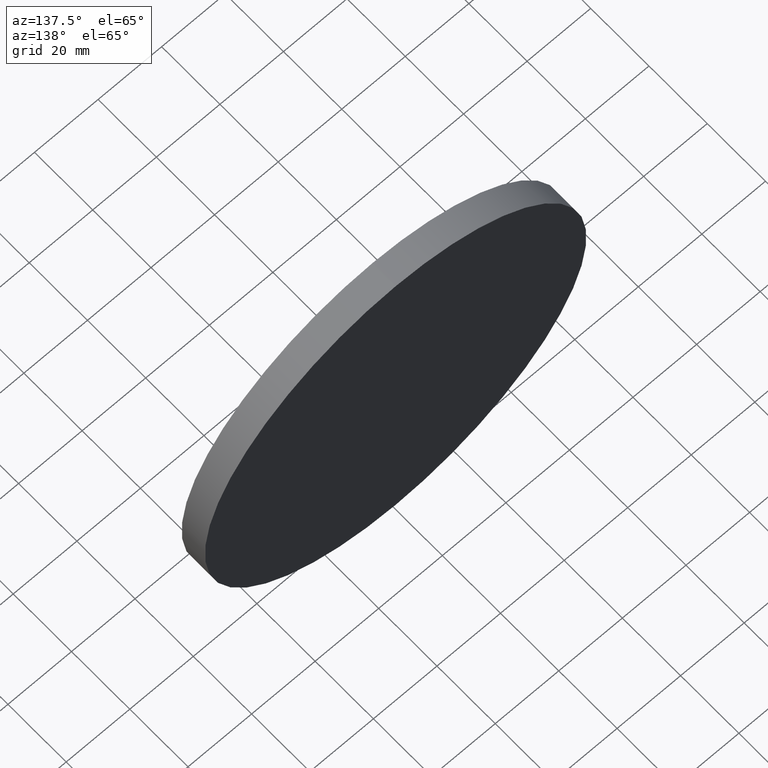
[diagram: clean part render]
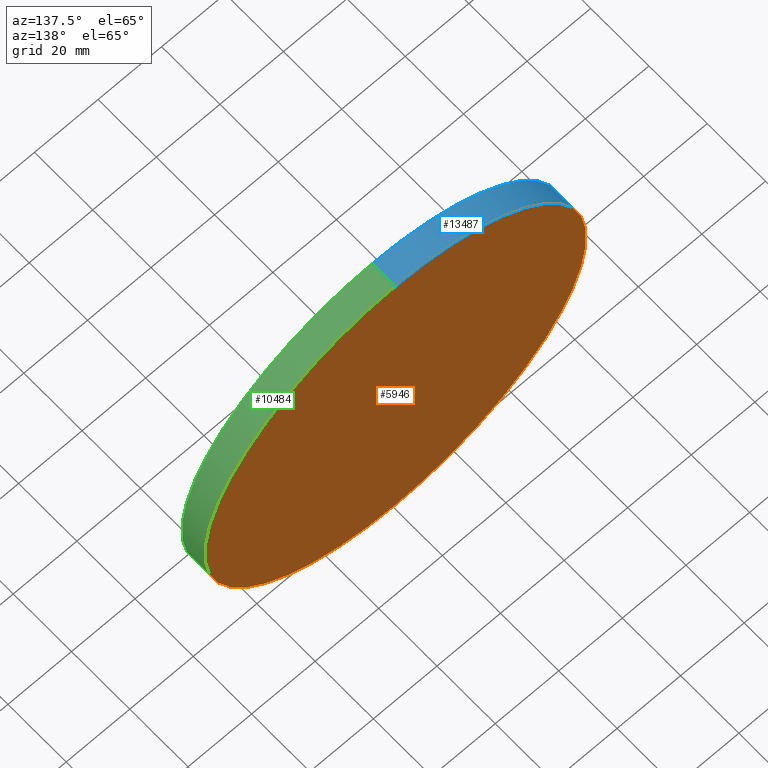
[diagram: same view with three faces highlighted in distinct colors, each labeled with its STEP entity id]
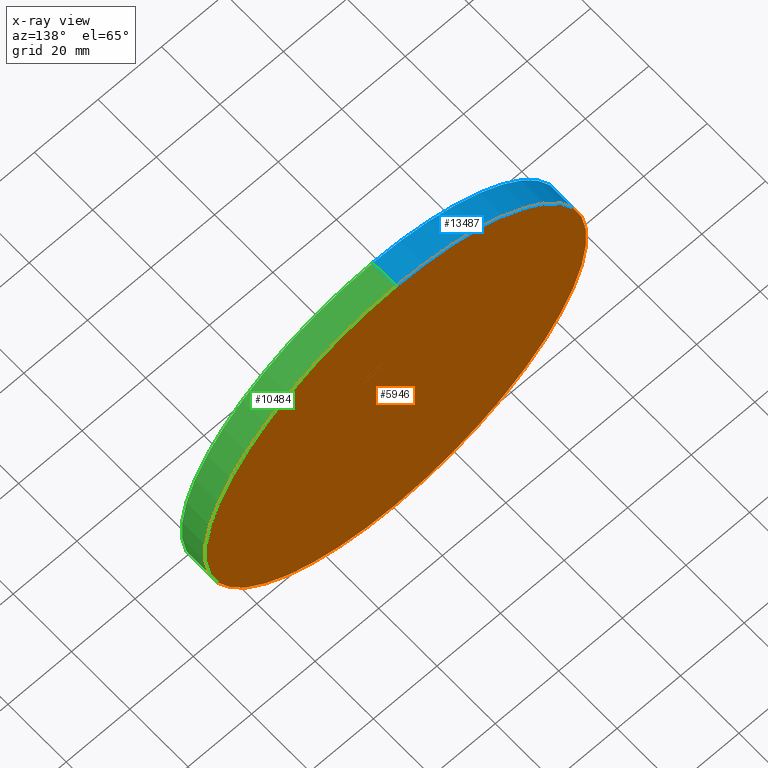
[diagram: x-ray of the same camera — body ghosted, the three highlighted faces saturated]
A machine part, auxiliary view with three faces highlighted in distinct colors.
The next image is the same camera in x-ray (body ghosted, the three faces saturated) — at least one of them is partly hidden behind the body in this view.
Their STEP definitions:

[orange] entity #5946 — the highlighted planar face has unit normal (0, 1, 0).
#87 = ORIENTED_EDGE ( 'NONE', *, *, #6109, .T. ) ;
#1100 = VERTEX_POINT ( 'NONE', #3534 ) ;
#2323 = DIRECTION ( 'NONE',  ( 0.000000000000000000, 1.000000000000000000, 0.000000000000000000 ) ) ;
#3534 = CARTESIAN_POINT ( 'NONE',  ( 0.000000000000000000, 4.000000000000000000, -60.00000000000000000 ) ) ;
#3856 = VERTEX_POINT ( 'NONE', #7646 ) ;
#4195 = CARTESIAN_POINT ( 'NONE',  ( 0.000000000000000000, 4.000000000000000000, 0.000000000000000000 ) ) ;
#4629 = AXIS2_PLACEMENT_3D ( 'NONE', #5671, #2323, #12077 ) ;
#4900 = EDGE_CURVE ( 'NONE', #1100, #3856, #9148, .T. ) ;
#5671 = CARTESIAN_POINT ( 'NONE',  ( 0.000000000000000000, 4.000000000000000000, 0.000000000000000000 ) ) ;
#5946 = ADVANCED_FACE ( 'NONE', ( #14100 ), #10820, .T. ) ;
#6109 = EDGE_CURVE ( 'NONE', #3856, #1100, #6939, .T. ) ;
#6939 = CIRCLE ( 'NONE', #7832, 60.00000000000000000 ) ;
#7113 = DIRECTION ( 'NONE',  ( 0.000000000000000000, 0.000000000000000000, 1.000000000000000000 ) ) ;
#7460 = DIRECTION ( 'NONE',  ( 0.000000000000000000, 1.000000000000000000, 0.000000000000000000 ) ) ;
#7646 = CARTESIAN_POINT ( 'NONE',  ( 7.347880794884118356E-15, 4.000000000000000000, 60.00000000000000000 ) ) ;
#7832 = AXIS2_PLACEMENT_3D ( 'NONE', #12426, #8066, #7113 ) ;
#8066 = DIRECTION ( 'NONE',  ( 0.000000000000000000, 1.000000000000000000, 0.000000000000000000 ) ) ;
#9148 = CIRCLE ( 'NONE', #4629, 60.00000000000000000 ) ;
#9326 = AXIS2_PLACEMENT_3D ( 'NONE', #4195, #7460, #10631 ) ;
#10625 = ORIENTED_EDGE ( 'NONE', *, *, #4900, .T. ) ;
#10631 = DIRECTION ( 'NONE',  ( 0.000000000000000000, -0.000000000000000000, 1.000000000000000000 ) ) ;
#10820 = PLANE ( 'NONE',  #9326 ) ;
#11790 = EDGE_LOOP ( 'NONE', ( #10625, #87 ) ) ;
#12077 = DIRECTION ( 'NONE',  ( 0.000000000000000000, 0.000000000000000000, 1.000000000000000000 ) ) ;
#12426 = CARTESIAN_POINT ( 'NONE',  ( 0.000000000000000000, 4.000000000000000000, 0.000000000000000000 ) ) ;
#14100 = FACE_OUTER_BOUND ( 'NONE', #11790, .T. ) ;

[blue] entity #13487 — the highlighted cylindrical surface (partial cylindrical patch) has radius 60 mm, axis along (-0, -1, -0).
#613 = EDGE_CURVE ( 'NONE', #3856, #9819, #3170, .T. ) ;
#1100 = VERTEX_POINT ( 'NONE', #3534 ) ;
#1184 = DIRECTION ( 'NONE',  ( 0.000000000000000000, 0.000000000000000000, -1.000000000000000000 ) ) ;
#1946 = CARTESIAN_POINT ( 'NONE',  ( 7.347880794884118356E-15, -4.000000000000000000, 60.00000000000000000 ) ) ;
#1967 = DIRECTION ( 'NONE',  ( 0.000000000000000000, 1.000000000000000000, 0.000000000000000000 ) ) ;
#2165 = CYLINDRICAL_SURFACE ( 'NONE', #11467, 60.00000000000000000 ) ;
#2323 = DIRECTION ( 'NONE',  ( 0.000000000000000000, 1.000000000000000000, 0.000000000000000000 ) ) ;
#3170 = LINE ( 'NONE', #13702, #9025 ) ;
#3199 = VERTEX_POINT ( 'NONE', #3945 ) ;
#3425 = DIRECTION ( 'NONE',  ( -0.000000000000000000, -1.000000000000000000, -0.000000000000000000 ) ) ;
#3534 = CARTESIAN_POINT ( 'NONE',  ( 0.000000000000000000, 4.000000000000000000, -60.00000000000000000 ) ) ;
#3856 = VERTEX_POINT ( 'NONE', #7646 ) ;
#3945 = CARTESIAN_POINT ( 'NONE',  ( 0.000000000000000000, -4.000000000000000000, -60.00000000000000000 ) ) ;
#4236 = CARTESIAN_POINT ( 'NONE',  ( 0.000000000000000000, 4.000000000000000000, -60.00000000000000000 ) ) ;
#4280 = ORIENTED_EDGE ( 'NONE', *, *, #5938, .T. ) ;
#4401 = FACE_OUTER_BOUND ( 'NONE', #13728, .T. ) ;
#4629 = AXIS2_PLACEMENT_3D ( 'NONE', #5671, #2323, #12077 ) ;
#4900 = EDGE_CURVE ( 'NONE', #1100, #3856, #9148, .T. ) ;
#5402 = CARTESIAN_POINT ( 'NONE',  ( 0.000000000000000000, -4.000000000000000000, 0.000000000000000000 ) ) ;
#5671 = CARTESIAN_POINT ( 'NONE',  ( 0.000000000000000000, 4.000000000000000000, 0.000000000000000000 ) ) ;
#5938 = EDGE_CURVE ( 'NONE', #1100, #3199, #13748, .T. ) ;
#6449 = DIRECTION ( 'NONE',  ( -0.000000000000000000, -1.000000000000000000, -0.000000000000000000 ) ) ;
#7646 = CARTESIAN_POINT ( 'NONE',  ( 7.347880794884118356E-15, 4.000000000000000000, 60.00000000000000000 ) ) ;
#7859 = ORIENTED_EDGE ( 'NONE', *, *, #11344, .T. ) ;
#8703 = DIRECTION ( 'NONE',  ( 0.000000000000000000, 0.000000000000000000, 1.000000000000000000 ) ) ;
#9025 = VECTOR ( 'NONE', #12603, 1000.000000000000000 ) ;
#9148 = CIRCLE ( 'NONE', #4629, 60.00000000000000000 ) ;
#9819 = VERTEX_POINT ( 'NONE', #1946 ) ;
#10351 = AXIS2_PLACEMENT_3D ( 'NONE', #5402, #1967, #8703 ) ;
#10440 = CIRCLE ( 'NONE', #10351, 60.00000000000000000 ) ;
#10849 = VECTOR ( 'NONE', #6449, 1000.000000000000000 ) ;
#11205 = CARTESIAN_POINT ( 'NONE',  ( 0.000000000000000000, 4.000000000000000000, 0.000000000000000000 ) ) ;
#11344 = EDGE_CURVE ( 'NONE', #3199, #9819, #10440, .T. ) ;
#11467 = AXIS2_PLACEMENT_3D ( 'NONE', #11205, #3425, #1184 ) ;
#12077 = DIRECTION ( 'NONE',  ( 0.000000000000000000, 0.000000000000000000, 1.000000000000000000 ) ) ;
#12603 = DIRECTION ( 'NONE',  ( -0.000000000000000000, -1.000000000000000000, -0.000000000000000000 ) ) ;
#12637 = ORIENTED_EDGE ( 'NONE', *, *, #4900, .F. ) ;
#13159 = ORIENTED_EDGE ( 'NONE', *, *, #613, .F. ) ;
#13487 = ADVANCED_FACE ( 'NONE', ( #4401 ), #2165, .T. ) ;
#13702 = CARTESIAN_POINT ( 'NONE',  ( 7.347880794884118356E-15, 4.000000000000000000, 60.00000000000000000 ) ) ;
#13728 = EDGE_LOOP ( 'NONE', ( #13159, #12637, #4280, #7859 ) ) ;
#13748 = LINE ( 'NONE', #4236, #10849 ) ;

[green] entity #10484 — the highlighted cylindrical surface (partial cylindrical patch) has radius 60 mm, axis along (-0, -1, -0).
#342 = DIRECTION ( 'NONE',  ( -0.000000000000000000, -1.000000000000000000, -0.000000000000000000 ) ) ;
#613 = EDGE_CURVE ( 'NONE', #3856, #9819, #3170, .T. ) ;
#1100 = VERTEX_POINT ( 'NONE', #3534 ) ;
#1374 = EDGE_CURVE ( 'NONE', #9819, #3199, #3330, .T. ) ;
#1386 = DIRECTION ( 'NONE',  ( 0.000000000000000000, 1.000000000000000000, 0.000000000000000000 ) ) ;
#1852 = EDGE_LOOP ( 'NONE', ( #2328, #9891, #8130, #7344 ) ) ;
#1946 = CARTESIAN_POINT ( 'NONE',  ( 7.347880794884118356E-15, -4.000000000000000000, 60.00000000000000000 ) ) ;
#2328 = ORIENTED_EDGE ( 'NONE', *, *, #6109, .F. ) ;
#2608 = DIRECTION ( 'NONE',  ( 0.000000000000000000, 0.000000000000000000, -1.000000000000000000 ) ) ;
#3170 = LINE ( 'NONE', #13702, #9025 ) ;
#3199 = VERTEX_POINT ( 'NONE', #3945 ) ;
#3330 = CIRCLE ( 'NONE', #7291, 60.00000000000000000 ) ;
#3534 = CARTESIAN_POINT ( 'NONE',  ( 0.000000000000000000, 4.000000000000000000, -60.00000000000000000 ) ) ;
#3765 = DIRECTION ( 'NONE',  ( 0.000000000000000000, 0.000000000000000000, 1.000000000000000000 ) ) ;
#3856 = VERTEX_POINT ( 'NONE', #7646 ) ;
#3945 = CARTESIAN_POINT ( 'NONE',  ( 0.000000000000000000, -4.000000000000000000, -60.00000000000000000 ) ) ;
#4236 = CARTESIAN_POINT ( 'NONE',  ( 0.000000000000000000, 4.000000000000000000, -60.00000000000000000 ) ) ;
#5938 = EDGE_CURVE ( 'NONE', #1100, #3199, #13748, .T. ) ;
#6109 = EDGE_CURVE ( 'NONE', #3856, #1100, #6939, .T. ) ;
#6449 = DIRECTION ( 'NONE',  ( -0.000000000000000000, -1.000000000000000000, -0.000000000000000000 ) ) ;
#6939 = CIRCLE ( 'NONE', #7832, 60.00000000000000000 ) ;
#7113 = DIRECTION ( 'NONE',  ( 0.000000000000000000, 0.000000000000000000, 1.000000000000000000 ) ) ;
#7291 = AXIS2_PLACEMENT_3D ( 'NONE', #10390, #1386, #3765 ) ;
#7344 = ORIENTED_EDGE ( 'NONE', *, *, #5938, .F. ) ;
#7646 = CARTESIAN_POINT ( 'NONE',  ( 7.347880794884118356E-15, 4.000000000000000000, 60.00000000000000000 ) ) ;
#7832 = AXIS2_PLACEMENT_3D ( 'NONE', #12426, #8066, #7113 ) ;
#8066 = DIRECTION ( 'NONE',  ( 0.000000000000000000, 1.000000000000000000, 0.000000000000000000 ) ) ;
#8130 = ORIENTED_EDGE ( 'NONE', *, *, #1374, .T. ) ;
#9025 = VECTOR ( 'NONE', #12603, 1000.000000000000000 ) ;
#9420 = CYLINDRICAL_SURFACE ( 'NONE', #12998, 60.00000000000000000 ) ;
#9819 = VERTEX_POINT ( 'NONE', #1946 ) ;
#9891 = ORIENTED_EDGE ( 'NONE', *, *, #613, .T. ) ;
#10390 = CARTESIAN_POINT ( 'NONE',  ( 0.000000000000000000, -4.000000000000000000, 0.000000000000000000 ) ) ;
#10484 = ADVANCED_FACE ( 'NONE', ( #12327 ), #9420, .T. ) ;
#10849 = VECTOR ( 'NONE', #6449, 1000.000000000000000 ) ;
#11363 = CARTESIAN_POINT ( 'NONE',  ( 0.000000000000000000, 4.000000000000000000, 0.000000000000000000 ) ) ;
#12327 = FACE_OUTER_BOUND ( 'NONE', #1852, .T. ) ;
#12426 = CARTESIAN_POINT ( 'NONE',  ( 0.000000000000000000, 4.000000000000000000, 0.000000000000000000 ) ) ;
#12603 = DIRECTION ( 'NONE',  ( -0.000000000000000000, -1.000000000000000000, -0.000000000000000000 ) ) ;
#12998 = AXIS2_PLACEMENT_3D ( 'NONE', #11363, #342, #2608 ) ;
#13702 = CARTESIAN_POINT ( 'NONE',  ( 7.347880794884118356E-15, 4.000000000000000000, 60.00000000000000000 ) ) ;
#13748 = LINE ( 'NONE', #4236, #10849 ) ;